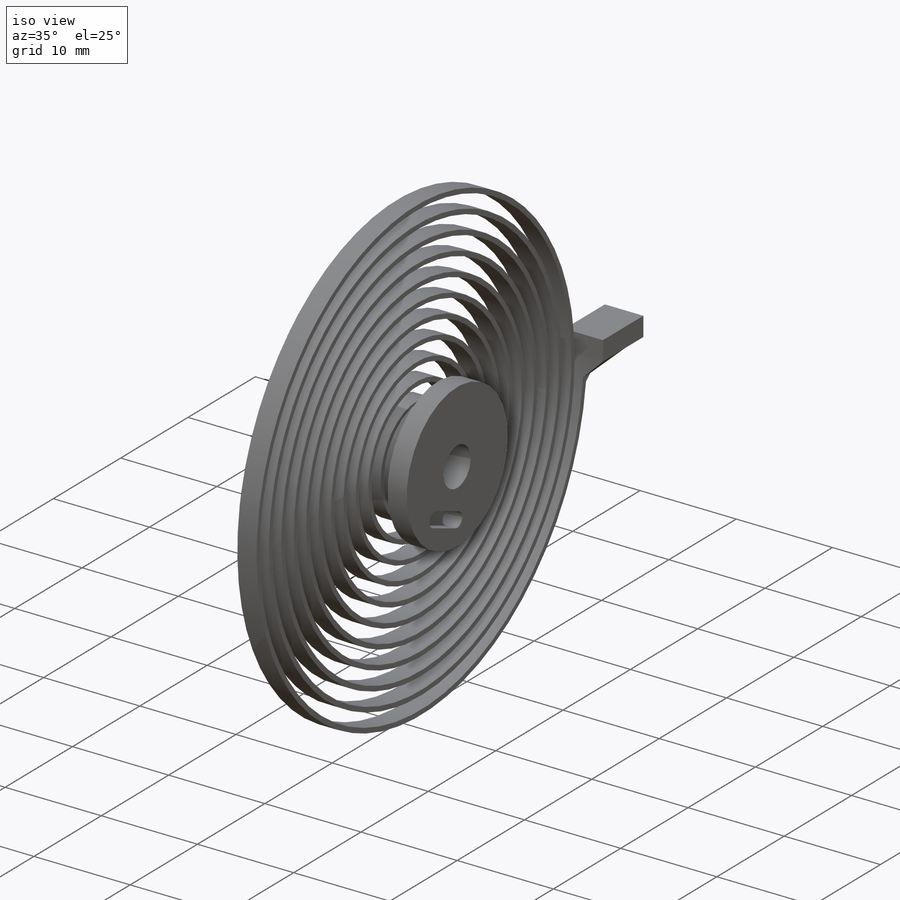
[diagram: iso view]
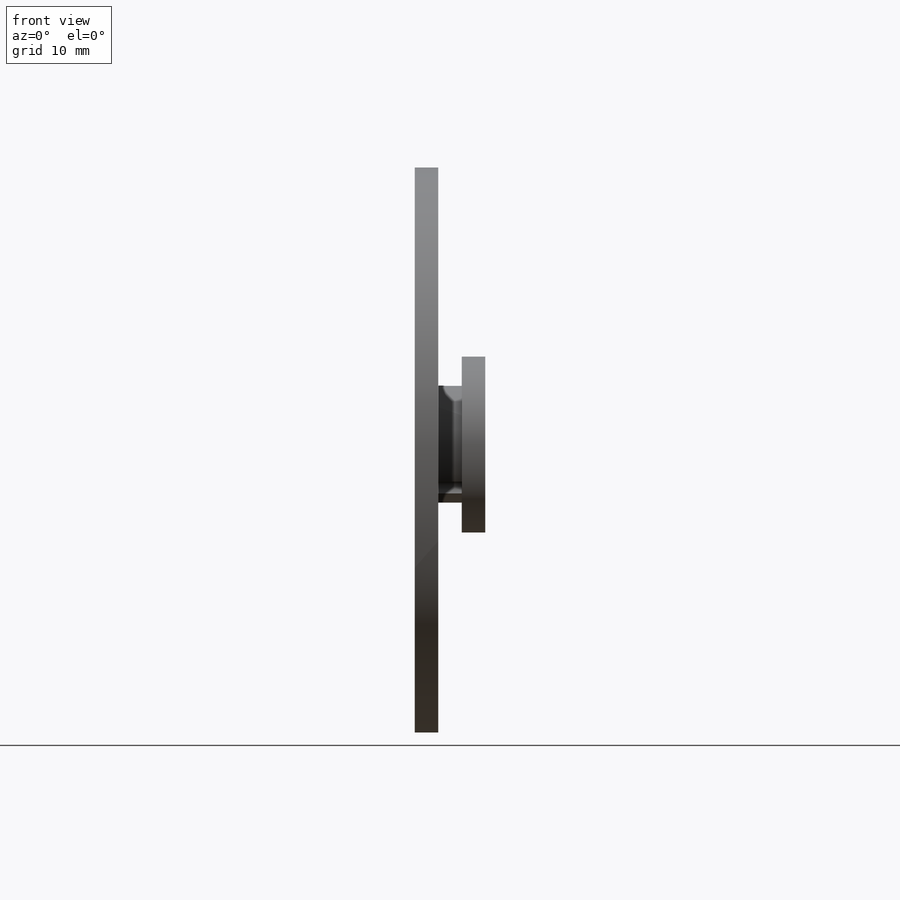
[diagram: front view]
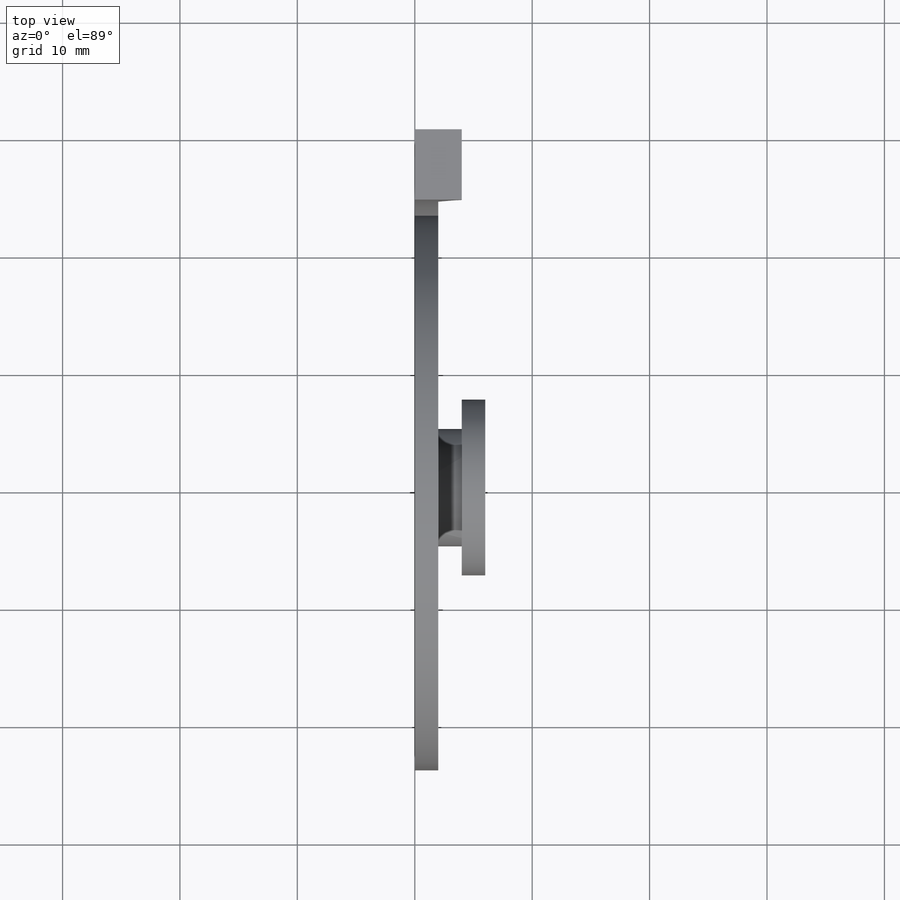
[diagram: top view]
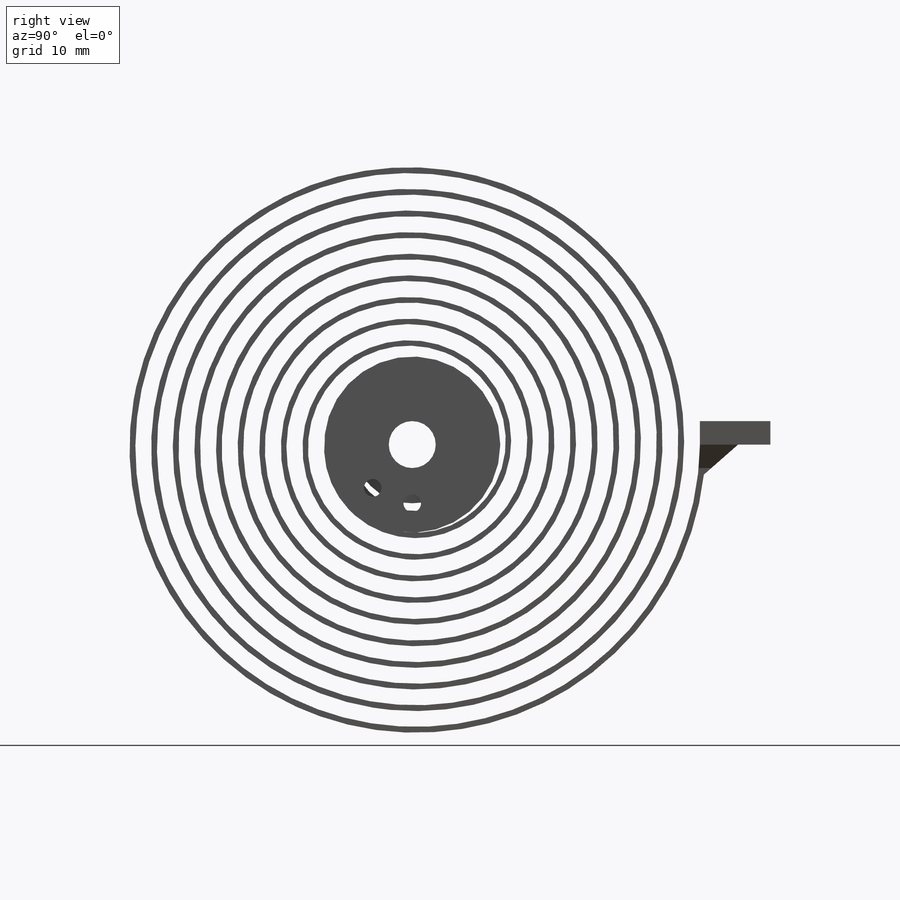
[diagram: right view]
SOLIDWORKS PART (.sldprt)
format: sldprt  version: not decoded by parser v0  size: 695,296 bytes
history: native  units: mm
features: sketch x12, extrude x6, cut_extrude x4, helix x2, material x1, chamfer x1 (+13 scaffold rows collapsed)
feature tree (39):
  scaffold x13  (default folders/planes/origin — collapsed)
  material  "Material <not specified>"
  sketch  "Sketch1"  dims[D1=50.0mm]
  helix  "Helix/Spiral1"  Pitch=969.868421mm
  sketch  "Sketch4"  dims[D1=0.5mm]
  helix  "Helix/Spiral4"  Pitch=933.947368mm
  sketch  "Sketch6"
  extrude  "Boss-Extrude2"  Depth=2mm
  sketch  "Sketch9"  dims[D1=2.0mm D2=6.0mm]
  extrude  "Boss-Extrude4"  Depth=2mm
  sketch  "Sketch12"
  extrude  "Boss-Extrude6"  Depth=2mm
  sketch  "Sketch14"  dims[D1=10.0mm]
  extrude  "Boss-Extrude9"  Depth=4mm
  sketch  "Sketch15"  dims[D1=15.0mm]
  extrude  "Boss-Extrude10"  Depth=2mm
  sketch  "Sketch16"  dims[D1=4.0mm]
  cut_extrude  "Cut-Extrude1"  [1 undecoded]
  sketch  "Sketch17"  dims[D1=1.5mm]
  cut_extrude  "Cut-Extrude2"  Depth=2mm
  sketch  "Sketch18"
  extrude  "Boss-Extrude11"  Depth=2mm
  chamfer  "Chamfer1"  Distance=2mm Angle=45deg
  sketch  "Sketch19"  dims[D1=1.5mm]
  cut_extrude  "Cut-Extrude3"  Depth=2mm
  sketch  "Sketch20"
  cut_extrude  "Cut-Extrude4"  Depth=1mm
decode coverage: 20 of 25 modeling features carry decoded parameters
note: 1 parameter value undecoded
note: suppression state not decoded; provenance and decode notes live in map.json
